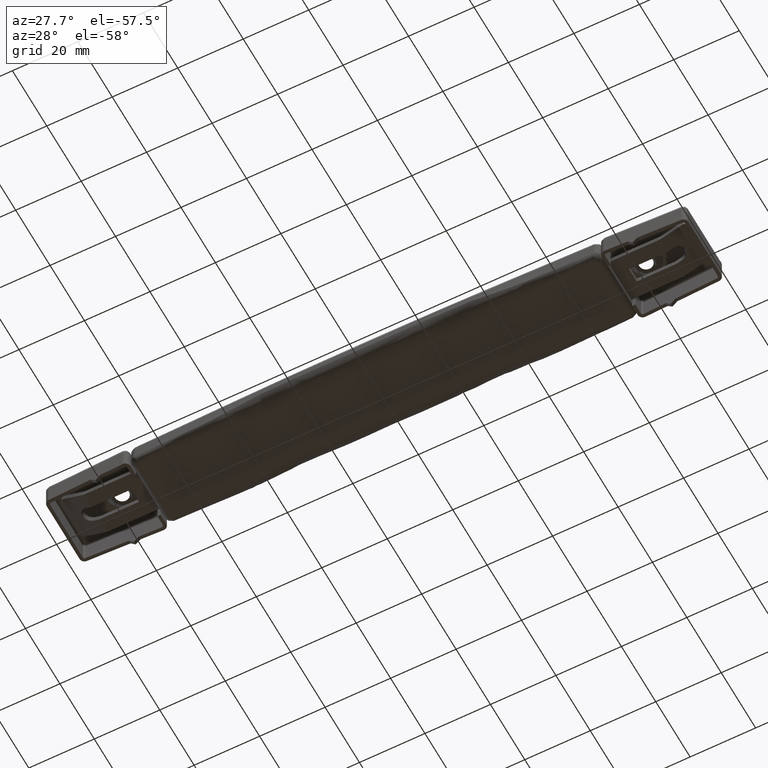
[diagram: clean part render]
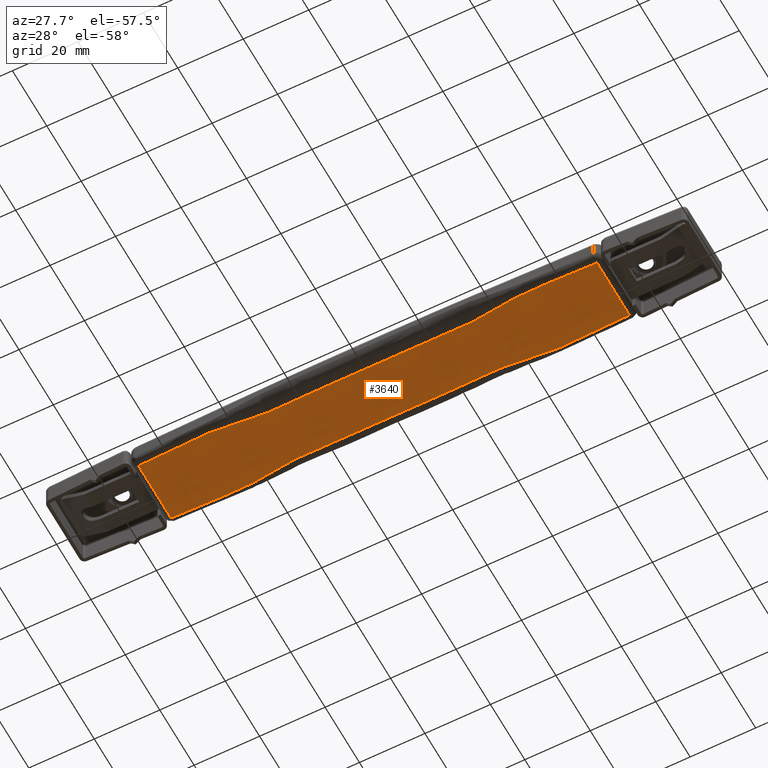
[diagram: same view with one face highlighted and labeled with its STEP entity id]
A machine part, auxiliary view. The second image highlights one B-rep face of the part: STEP entity #3640.
In plain terms, the highlighted face is a freeform B-spline surface patch.
Its self-contained STEP definition (entity closure, byte-faithful):
#2830=CARTESIAN_POINT('',(-69.999500000000012,-9.432623306275071,0.0));
#2831=VERTEX_POINT('',#2830);
#2917=CARTESIAN_POINT('',(70.0,-9.432608070784688,0.0));
#2918=VERTEX_POINT('',#2917);
#3148=CARTESIAN_POINT('',(70.0,-9.432608070784688,0.0));
#3149=CARTESIAN_POINT('',(64.891274842351081,-9.588399190632524,0.0));
#3150=CARTESIAN_POINT('',(58.960890663748827,-9.748956531969229,0.0));
#3151=CARTESIAN_POINT('',(52.756254641743027,-9.894141473857930,0.0));
#3152=CARTESIAN_POINT('',(51.353411210894457,-9.926788672767156,0.0));
#3153=CARTESIAN_POINT('',(50.669184499611731,-9.944239735866631,0.0));
#3154=CARTESIAN_POINT('',(49.619977227005961,-9.970977878820754,0.0));
#3155=CARTESIAN_POINT('',(48.786942986189160,-9.965720983589492,0.0));
#3156=CARTESIAN_POINT('',(47.418487180136701,-9.923759978499831,0.0));
#3157=CARTESIAN_POINT('',(46.005857703576027,-9.841728250024683,0.0));
#3158=CARTESIAN_POINT('',(44.551586626370643,-9.706427318607151,0.0));
#3159=CARTESIAN_POINT('',(43.440124625077111,-9.585567826475081,0.0));
#3160=CARTESIAN_POINT('',(41.899498169903012,-9.401078041349360,0.0));
#3161=CARTESIAN_POINT('',(40.270434476411452,-9.187977092192018,0.0));
#3162=CARTESIAN_POINT('',(38.935583124060507,-9.012344641973861,0.0));
#3163=CARTESIAN_POINT('',(37.894619516750893,-8.877574304439115,0.0));
#3164=CARTESIAN_POINT('',(36.671964535804833,-8.724712834667820,0.0));
#3165=CARTESIAN_POINT('',(35.310974218975844,-8.576292599960075,0.0));
#3166=CARTESIAN_POINT('',(34.220643753601507,-8.472870826718291,0.0));
#3167=CARTESIAN_POINT('',(32.810249159555937,-8.361734682735541,0.0));
#3168=CARTESIAN_POINT('',(31.533162598064461,-8.309920973019038,0.0));
#3169=CARTESIAN_POINT('',(30.734690979182680,-8.302436047002244,0.0));
#3170=CARTESIAN_POINT('',(30.575075256226039,-8.300756045820604,0.0));
#3171=CARTESIAN_POINT('',(30.415462139795551,-8.303480317384393,0.0));
#3172=CARTESIAN_POINT('',(30.098803434187950,-8.306032855893211,0.0));
#3173=CARTESIAN_POINT('',(28.935160917211778,-8.319145657735422,0.0));
#3174=CARTESIAN_POINT('',(26.858819195741631,-8.341752421088103,0.0));
#3175=CARTESIAN_POINT('',(25.007834751840530,-8.362936138631067,0.0));
#3176=CARTESIAN_POINT('',(8.762683208683331,-8.533486732524313,0.0));
#3177=CARTESIAN_POINT('',(-7.301575237454405,-8.541129782106893,0.0));
#3178=CARTESIAN_POINT('',(-23.820579372750331,-8.375767968508082,0.0));
#3179=CARTESIAN_POINT('',(-26.373368626045309,-8.347295194948066,0.0));
#3180=CARTESIAN_POINT('',(-28.456818973554569,-8.324406892200969,0.0));
#3181=CARTESIAN_POINT('',(-30.083916056658140,-8.306087500434217,0.0));
#3182=CARTESIAN_POINT('',(-30.431618242208021,-8.303418164475419,0.0));
#3183=CARTESIAN_POINT('',(-30.584127346117970,-8.300834123875161,0.0));
#3184=CARTESIAN_POINT('',(-30.736641935311980,-8.302488979742201,0.0));
#3185=CARTESIAN_POINT('',(-31.349835077576639,-8.308095270352235,0.0));
#3186=CARTESIAN_POINT('',(-32.627172944137982,-8.350276942947566,0.0));
#3187=CARTESIAN_POINT('',(-34.038242973648352,-8.455708996918482,0.0));
#3188=CARTESIAN_POINT('',(-35.196730282041173,-8.565514944715131,0.0));
#3189=CARTESIAN_POINT('',(-35.968209891312419,-8.647365550109015,0.0));
#3190=CARTESIAN_POINT('',(-37.328066361705879,-8.805584846979539,0.0));
#3191=CARTESIAN_POINT('',(-38.844610364176241,-8.999028177703933,0.0));
#3192=CARTESIAN_POINT('',(-40.360113755561443,-9.200118135866630,0.0));
#3193=CARTESIAN_POINT('',(-41.627512396107811,-9.363160917117783,0.0));
#3194=CARTESIAN_POINT('',(-42.714220364067323,-9.499657168588946,0.0));
#3195=CARTESIAN_POINT('',(-43.598048211712502,-9.603400692500559,0.0));
#3196=CARTESIAN_POINT('',(-44.687050931495158,-9.719777682799954,0.0));
#3197=CARTESIAN_POINT('',(-46.050608714952311,-9.843908186037639,0.0));
#3198=CARTESIAN_POINT('',(-47.463118253264717,-9.925221339444176,0.0));
#3199=CARTESIAN_POINT('',(-48.284134899491008,-9.950866265971872,0.0));
#3200=CARTESIAN_POINT('',(-48.808863533777057,-9.957165795162378,0.0));
#3201=CARTESIAN_POINT('',(-49.493369992565022,-9.956696281554255,0.0));
#3202=CARTESIAN_POINT('',(-50.542945669025649,-9.944000991981179,0.0));
#3203=CARTESIAN_POINT('',(-51.660816386632852,-9.921143982504336,0.0));
#3204=CARTESIAN_POINT('',(-53.075081692258607,-9.885389072319310,0.0));
#3205=CARTESIAN_POINT('',(-56.006106826568683,-9.809913220810739,0.0));
#3206=CARTESIAN_POINT('',(-58.617880356388547,-9.746159237952602,0.0));
#3207=CARTESIAN_POINT('',(-61.104157110812430,-9.685621311129289,0.0));
#3208=CARTESIAN_POINT('',(-62.096446867627989,-9.662361534449806,0.0));
#3209=CARTESIAN_POINT('',(-65.232717584401570,-9.576785929043597,0.0));
#3210=CARTESIAN_POINT('',(-67.855611861238444,-9.497600577445079,0.0));
#3211=CARTESIAN_POINT('',(-69.999500000000012,-9.432623306275071,0.0));
#3212=B_SPLINE_CURVE_WITH_KNOTS('',3,(#3148,#3149,#3150,#3151,#3152,#3153,#3154,#3155,#3156,#3157,#3158,#3159,#3160,#3161,#3162,#3163,#3164,#3165,#3166,#3167,#3168,#3169,#3170,#3171,#3172,#3173,#3174,#3175,#3176,#3177,#3178,#3179,#3180,#3181,#3182,#3183,#3184,#3185,#3186,#3187,#3188,#3189,#3190,#3191,#3192,#3193,#3194,#3195,#3196,#3197,#3198,#3199,#3200,#3201,#3202,#3203,#3204,#3205,#3206,#3207,#3208,#3209,#3210,#3211),.UNSPECIFIED.,.F.,.U.,(4,1,1,1,1,1,1,1,1,1,1,1,1,2,1,1,1,1,2,1,2,1,1,2,1,1,1,1,2,1,2,1,1,1,1,1,1,1,1,1,1,1,1,1,1,1,1,1,1,1,1,2,1,1,4),(0.000127201723501,15.333424247587191,17.797704069089288,18.619130676256770,19.543090128598649,19.851076612712721,21.767651213850119,22.041556549972849,23.958303684403631,26.011873534841399,26.422660623364891,27.312359144766670,30.666690802336309,31.351436989183341,33.815652478227307,35.047859827684732,35.458463320821409,37.101304839354000,39.291733277960077,39.496674876840459,39.770600846042747,40.446679672319533,43.261749671840221,45.999995679101687,91.999889840219254,94.190356841851838,95.559485580696361,99.658733834326284,100.441085226714410,100.701869024177000,100.898636084881010,102.541481967173990,104.731958576605900,105.142695338082110,106.032573743591700,107.059322136136500,109.249744058966600,110.618986005746290,111.645693910082100,113.083268195299200,113.904706724483200,114.315337459246610,116.368911983725200,118.011715205939400,118.559310457100910,118.833010658614000,119.585980009302700,120.612777927142600,121.981932509592600,122.940267321021910,124.856929440000900,130.777920893964110,132.317970390247100,133.755603684714490,140.190225599640090),.UNSPECIFIED.);
#3213=EDGE_CURVE('',#2918,#2831,#3212,.T.);
#3241=CARTESIAN_POINT('',(-69.999500000000012,9.434623308189460,0.0));
#3242=VERTEX_POINT('',#3241);
#3256=CARTESIAN_POINT('',(-69.999500000000012,-9.432623306275071,0.0));
#3257=CARTESIAN_POINT('',(-69.999500000000012,9.434623308189460,0.0));
#3258=QUASI_UNIFORM_CURVE('',1,(#3256,#3257),.UNSPECIFIED.,.F.,.U.);
#3259=EDGE_CURVE('',#2831,#3242,#3258,.T.);
#3287=CARTESIAN_POINT('',(70.0,9.434608070649849,0.0));
#3288=VERTEX_POINT('',#3287);
#3289=CARTESIAN_POINT('',(70.0,9.434608070649849,0.0));
#3290=CARTESIAN_POINT('',(70.0,-9.432608070784688,0.0));
#3291=QUASI_UNIFORM_CURVE('',1,(#3289,#3290),.UNSPECIFIED.,.F.,.U.);
#3292=EDGE_CURVE('',#3288,#2918,#3291,.T.);
#3564=CARTESIAN_POINT('',(-76.992474753653809,10.922004319373920,0.0));
#3565=CARTESIAN_POINT('',(76.992978508733003,10.922004319373920,0.0));
#3566=CARTESIAN_POINT('',(-76.992474753653809,-10.919992410674920,0.0));
#3567=CARTESIAN_POINT('',(76.992978508733003,-10.919992410674920,0.0));
#3568=B_SPLINE_SURFACE_WITH_KNOTS('',1,1,((#3564,#3566),(#3565,#3567)),.UNSPECIFIED.,.F.,.F.,.U.,(2,2),(2,2),(0.0,153.985453262386810),(0.0,21.841996730048830),.UNSPECIFIED.);
#3569=ORIENTED_EDGE('',*,*,#3259,.T.);
#3570=CARTESIAN_POINT('',(-69.999500000000012,9.434623308189460,0.0));
#3571=CARTESIAN_POINT('',(-64.890774951349059,9.590416958803735,0.0));
#3572=CARTESIAN_POINT('',(-58.960390457981433,9.750965812828145,0.0));
#3573=CARTESIAN_POINT('',(-52.755754564660471,9.896153552632587,0.0));
#3574=CARTESIAN_POINT('',(-51.352911080286042,9.928799184463300,0.0));
#3575=CARTESIAN_POINT('',(-50.668684534759073,9.946255139675378,0.0));
#3576=CARTESIAN_POINT('',(-49.619476621810222,9.972973251448888,0.0));
#3577=CARTESIAN_POINT('',(-48.786441725788833,9.967728333638700,0.0));
#3578=CARTESIAN_POINT('',(-47.417989484242980,9.925785367020140,0.0));
#3579=CARTESIAN_POINT('',(-46.005354894524451,9.843727214823481,0.0));
#3580=CARTESIAN_POINT('',(-44.551087082496352,9.708435514597785,0.0));
#3581=CARTESIAN_POINT('',(-43.439625053543963,9.587574789507888,0.0));
#3582=CARTESIAN_POINT('',(-41.898996652501992,9.403099461580830,0.0));
#3583=CARTESIAN_POINT('',(-40.269934847263670,9.189983279529628,0.0));
#3584=CARTESIAN_POINT('',(-38.935083663525731,9.014349651794399,0.0));
#3585=CARTESIAN_POINT('',(-37.894121848899232,8.879563007693978,0.0));
#3586=CARTESIAN_POINT('',(-36.671464605237290,8.726727288714269,0.0));
#3587=CARTESIAN_POINT('',(-35.310473294189777,8.578302020593412,0.0));
#3588=CARTESIAN_POINT('',(-34.220146455806990,8.474872409705190,0.0));
#3589=CARTESIAN_POINT('',(-32.809745965396807,8.363749403147708,0.0));
#3590=CARTESIAN_POINT('',(-31.532664249190180,8.311924925097593,0.0));
#3591=CARTESIAN_POINT('',(-30.734190936513670,8.304443334949321,0.0));
#3592=CARTESIAN_POINT('',(-30.574575502662601,8.302762701289746,0.0));
#3593=CARTESIAN_POINT('',(-30.414962385631181,8.305486938083607,0.0));
#3594=CARTESIAN_POINT('',(-30.098303679549630,8.308039407971991,0.0));
#3595=CARTESIAN_POINT('',(-28.934661159184351,8.321151954508180,0.0));
#3596=CARTESIAN_POINT('',(-26.858319434721441,8.343758273247140,0.0));
#3597=CARTESIAN_POINT('',(-25.007334982369130,8.364941572814804,0.0));
#3598=CARTESIAN_POINT('',(-8.762183433331632,8.535488708433626,0.0));
#3599=CARTESIAN_POINT('',(7.302075077735280,8.543128132073253,0.0));
#3600=CARTESIAN_POINT('',(23.821079140000290,8.377762784903579,0.0));
#3601=CARTESIAN_POINT('',(26.373868388101481,8.349289450400358,0.0));
#3602=CARTESIAN_POINT('',(28.457318737856870,8.326400722601145,0.0));
#3603=CARTESIAN_POINT('',(30.084415788392359,8.308080847125197,0.0));
#3604=CARTESIAN_POINT('',(30.432118118086169,8.305412094265448,0.0));
#3605=CARTESIAN_POINT('',(30.584626421004891,8.302824377148733,0.0));
#3606=CARTESIAN_POINT('',(30.737109678923542,8.304321033329259,0.0));
#3607=CARTESIAN_POINT('',(32.080672195623208,8.317709368031197,0.0));
#3608=CARTESIAN_POINT('',(33.493625770136589,8.406272190257790,0.0));
#3609=CARTESIAN_POINT('',(35.197222232093146,8.567457691546924,0.0));
#3610=CARTESIAN_POINT('',(35.968708880908281,8.649364991588758,0.0));
#3611=CARTESIAN_POINT('',(37.328566810264263,8.807571395964448,0.0));
#3612=CARTESIAN_POINT('',(38.845110517742498,9.001018452296931,0.0));
#3613=CARTESIAN_POINT('',(40.360612112509990,9.202121361472461,0.0));
#3614=CARTESIAN_POINT('',(41.628016110541942,9.365123226210358,0.0));
#3615=CARTESIAN_POINT('',(42.714715030049682,9.501690128660526,0.0));
#3616=CARTESIAN_POINT('',(43.598549196084193,9.605370916759533,0.0));
#3617=CARTESIAN_POINT('',(44.687552026440109,9.721807704064212,0.0));
#3618=CARTESIAN_POINT('',(46.051103835965947,9.845858441193661,0.0));
#3619=CARTESIAN_POINT('',(47.463620767984331,9.927231228158316,0.0));
#3620=CARTESIAN_POINT('',(48.284634400065073,9.952851481966599,0.0));
#3621=CARTESIAN_POINT('',(48.809363751343092,9.959169605841877,0.0));
#3622=CARTESIAN_POINT('',(49.493869530361167,9.958658382607661,0.0));
#3623=CARTESIAN_POINT('',(50.543445629594878,9.945985322345562,0.0));
#3624=CARTESIAN_POINT('',(51.661317883309522,9.923184170096665,0.0));
#3625=CARTESIAN_POINT('',(53.075581663139602,9.887381984490968,0.0));
#3626=CARTESIAN_POINT('',(56.006606913338111,9.811899373512615,0.0));
#3627=CARTESIAN_POINT('',(58.618380424465983,9.748146477771254,0.0));
#3628=CARTESIAN_POINT('',(61.104657165599221,9.687608009864780,0.0));
#3629=CARTESIAN_POINT('',(62.096946917667523,9.664348017071228,0.0));
#3630=CARTESIAN_POINT('',(65.233217615903939,9.578771730212621,0.0));
#3631=CARTESIAN_POINT('',(67.856111875632635,9.499585808200294,0.0));
#3632=CARTESIAN_POINT('',(70.0,9.434608070649849,0.0));
#3633=B_SPLINE_CURVE_WITH_KNOTS('',3,(#3570,#3571,#3572,#3573,#3574,#3575,#3576,#3577,#3578,#3579,#3580,#3581,#3582,#3583,#3584,#3585,#3586,#3587,#3588,#3589,#3590,#3591,#3592,#3593,#3594,#3595,#3596,#3597,#3598,#3599,#3600,#3601,#3602,#3603,#3604,#3605,#3606,#3607,#3608,#3609,#3610,#3611,#3612,#3613,#3614,#3615,#3616,#3617,#3618,#3619,#3620,#3621,#3622,#3623,#3624,#3625,#3626,#3627,#3628,#3629,#3630,#3631,#3632),.UNSPECIFIED.,.F.,.U.,(4,1,1,1,1,1,1,1,1,1,1,1,1,2,1,1,1,1,2,1,2,1,1,2,1,1,1,1,2,1,2,1,1,1,1,1,1,1,1,1,1,1,1,1,1,1,1,1,1,1,2,1,1,4),(0.000127201768322,15.333424247622791,17.797704069123359,18.619130676290268,19.543090128636180,19.851076612751442,21.767651213891700,22.041556550005168,23.958303684436270,26.011873534872379,26.422660623407051,27.312359144772021,30.666690802362641,31.351436989211649,33.815652478253128,35.047859827711427,35.458463320848040,37.101304839379772,39.291733277984690,39.496674876865271,39.770600846053640,40.446679672319242,43.261749671859548,45.999995678922247,91.999889840061741,94.190356841096587,95.559485580304752,99.658733834304030,100.441085226701200,100.701869024166800,100.898636084870600,104.731958576593500,105.142695338069800,106.032573743579800,107.059322136123000,109.249744058952700,110.618986005734300,111.645693910061600,113.083268195288400,113.904706724467800,114.315337459230700,116.368911983708700,118.011715205922400,118.559310457083700,118.833010658596810,119.585980009285390,120.612777927124990,121.981932509575100,122.940267321004100,124.856929439982910,130.777920893772010,132.317970389881710,133.755603685478890,140.190225599619590),.UNSPECIFIED.);
#3634=EDGE_CURVE('',#3242,#3288,#3633,.T.);
#3635=ORIENTED_EDGE('',*,*,#3634,.T.);
#3636=ORIENTED_EDGE('',*,*,#3292,.T.);
#3637=ORIENTED_EDGE('',*,*,#3213,.T.);
#3638=EDGE_LOOP('',(#3569,#3635,#3636,#3637));
#3639=FACE_OUTER_BOUND('',#3638,.T.);
#3640=ADVANCED_FACE('',(#3639),#3568,.T.);